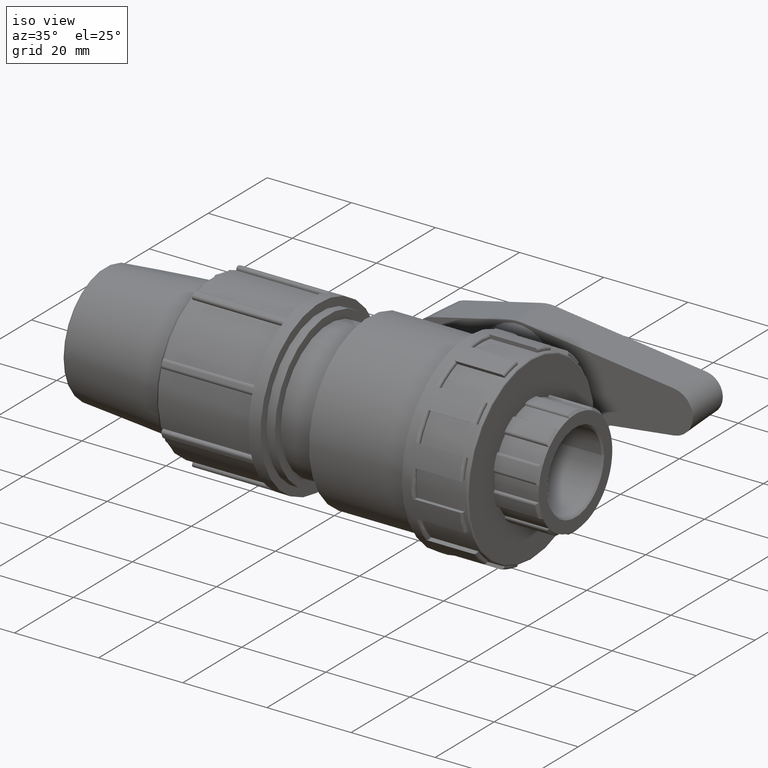
[diagram: clean part render]
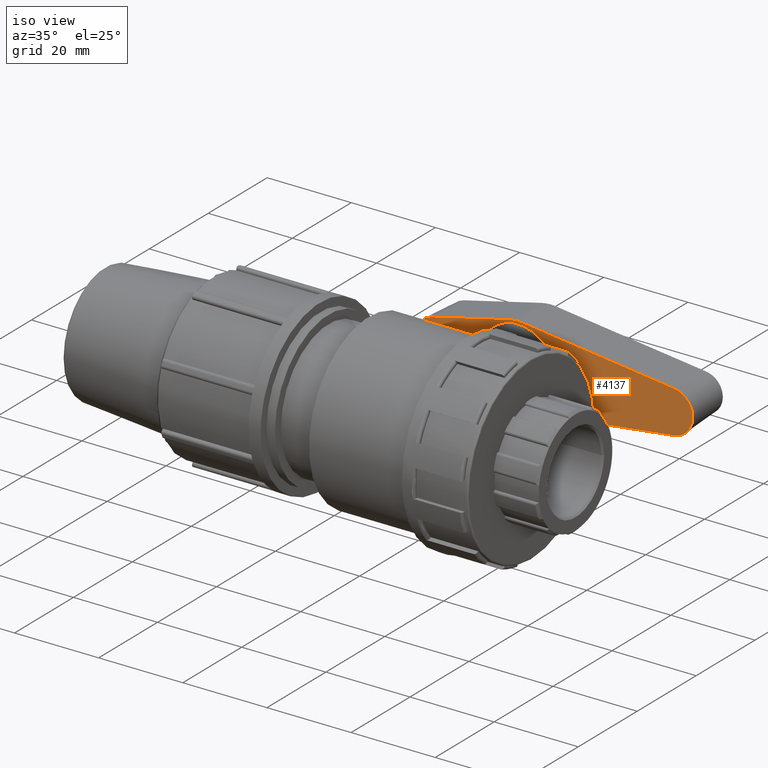
[diagram: same view with one face highlighted and labeled with its STEP entity id]
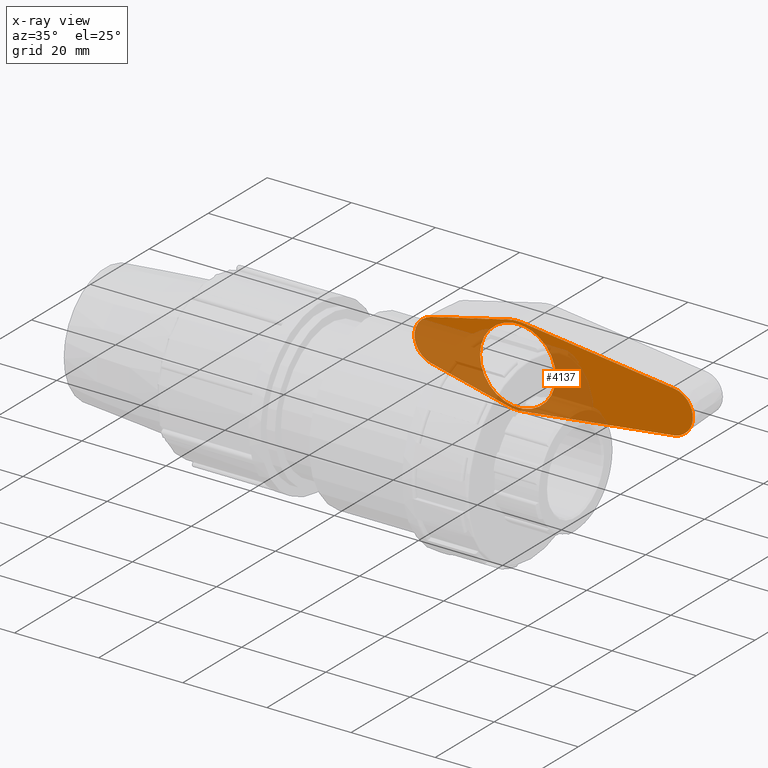
[diagram: x-ray of the same camera — body ghosted, the highlighted face saturated]
A machine part, iso view. The second image highlights one B-rep face of the part: STEP entity #4137.
The next image is the same camera in x-ray: the body ghosted, the highlighted face saturated — about 47% of this face is hidden behind the body in this view.
In plain terms, the highlighted planar face has unit normal (0, -1, -0).
Its self-contained STEP definition (entity closure, byte-faithful):
#83=FACE_BOUND('',#743,.T.);
#148=PLANE('',#4539);
#485=FACE_OUTER_BOUND('',#742,.T.);
#742=EDGE_LOOP('',(#3346,#3347,#3348,#3349,#3350,#3351,#3352,#3353));
#743=EDGE_LOOP('',(#3354));
#999=LINE('',#7653,#1243);
#1002=LINE('',#7661,#1246);
#1011=LINE('',#7692,#1255);
#1012=LINE('',#7695,#1256);
#1243=VECTOR('',#5439,36.2215405525497);
#1246=VECTOR('',#5448,36.2215405525497);
#1255=VECTOR('',#5481,18.9736659610103);
#1256=VECTOR('',#5484,18.9736659610103);
#1520=CIRCLE('',#4524,9.58958751693423);
#1521=CIRCLE('',#4527,5.08958751693422);
#1526=CIRCLE('',#4540,9.58958751693423);
#1527=CIRCLE('',#4541,5.08958751693422);
#1528=CIRCLE('',#4542,9.00000000000001);
#1854=VERTEX_POINT('',#7645);
#1855=VERTEX_POINT('',#7647);
#1856=VERTEX_POINT('',#7651);
#1857=VERTEX_POINT('',#7655);
#1858=VERTEX_POINT('',#7659);
#1867=VERTEX_POINT('',#7689);
#1868=VERTEX_POINT('',#7691);
#1869=VERTEX_POINT('',#7693);
#1870=VERTEX_POINT('',#7696);
#2394=EDGE_CURVE('',#1854,#1855,#1520,.T.);
#2397=EDGE_CURVE('',#1856,#1854,#999,.T.);
#2399=EDGE_CURVE('',#1857,#1856,#1521,.T.);
#2401=EDGE_CURVE('',#1858,#1857,#1002,.T.);
#2414=EDGE_CURVE('',#1867,#1858,#1526,.T.);
#2415=EDGE_CURVE('',#1868,#1867,#1011,.T.);
#2416=EDGE_CURVE('',#1869,#1868,#1527,.T.);
#2417=EDGE_CURVE('',#1855,#1869,#1012,.T.);
#2418=EDGE_CURVE('',#1870,#1870,#1528,.T.);
#3346=ORIENTED_EDGE('',*,*,#2397,.F.);
#3347=ORIENTED_EDGE('',*,*,#2399,.F.);
#3348=ORIENTED_EDGE('',*,*,#2401,.F.);
#3349=ORIENTED_EDGE('',*,*,#2414,.F.);
#3350=ORIENTED_EDGE('',*,*,#2415,.F.);
#3351=ORIENTED_EDGE('',*,*,#2416,.F.);
#3352=ORIENTED_EDGE('',*,*,#2417,.F.);
#3353=ORIENTED_EDGE('',*,*,#2394,.F.);
#3354=ORIENTED_EDGE('',*,*,#2418,.F.);
#4137=ADVANCED_FACE('',(#485,#83),#148,.T.);
#4524=AXIS2_PLACEMENT_3D('',#7648,#5433,#5434);
#4527=AXIS2_PLACEMENT_3D('',#7657,#5443,#5444);
#4539=AXIS2_PLACEMENT_3D('',#7688,#5477,#5478);
#4540=AXIS2_PLACEMENT_3D('',#7690,#5479,#5480);
#4541=AXIS2_PLACEMENT_3D('',#7694,#5482,#5483);
#4542=AXIS2_PLACEMENT_3D('',#7697,#5485,#5486);
#5433=DIRECTION('center_axis',(-3.06161699786839E-16,1.,0.));
#5434=DIRECTION('ref_axis',(1.,3.06161699786839E-16,0.));
#5439=DIRECTION('',(-0.992370974042457,-3.03825984231959E-16,-0.123287671232877));
#5443=DIRECTION('center_axis',(-3.06161699786839E-16,1.,0.));
#5444=DIRECTION('ref_axis',(1.,3.06161699786839E-16,0.));
#5448=DIRECTION('',(0.992370974042457,3.03825984231959E-16,-0.123287671232877));
#5477=DIRECTION('center_axis',(3.33756249813953E-16,-1.,-2.07066018474113E-32));
#5478=DIRECTION('ref_axis',(0.,0.,-1.));
#5479=DIRECTION('center_axis',(-3.06161699786839E-16,1.,0.));
#5480=DIRECTION('ref_axis',(1.,3.06161699786839E-16,0.));
#5481=DIRECTION('',(0.97300851082104,2.9789793958003E-16,0.230769230769231));
#5482=DIRECTION('center_axis',(-3.06161699786839E-16,1.,0.));
#5483=DIRECTION('ref_axis',(1.,3.06161699786839E-16,0.));
#5484=DIRECTION('',(-0.97300851082104,-2.9789793958003E-16,0.230769230769231));
#5485=DIRECTION('center_axis',(3.33756249813953E-16,-1.,-2.07066018474113E-32));
#5486=DIRECTION('ref_axis',(-1.,0.,0.));
#7645=CARTESIAN_POINT('',(1.18227791304668,33.75,-9.5164283048454));
#7647=CARTESIAN_POINT('',(-2.21298173467713,33.75,-9.33075026924021));
#7648=CARTESIAN_POINT('Origin',(-2.86910534680801E-15,33.75,0.));
#7651=CARTESIAN_POINT('',(37.1274833924987,33.75,-5.05075892165434));
#7653=CARTESIAN_POINT('',(37.1274833924987,33.75,-5.05075892165434));
#7655=CARTESIAN_POINT('',(37.1274833924987,33.75,5.05075892165434));
#7657=CARTESIAN_POINT('Origin',(36.5,33.75,0.));
#7659=CARTESIAN_POINT('',(1.18227791304669,33.75,9.5164283048454));
#7661=CARTESIAN_POINT('',(1.18227791304669,33.75,9.5164283048454));
#7688=CARTESIAN_POINT('Origin',(36.5000074954151,33.75,-1.54617918273625E-16));
#7689=CARTESIAN_POINT('',(-2.21298173467713,33.75,9.3307502692402));
#7690=CARTESIAN_POINT('Origin',(-2.86910534680801E-15,33.75,0.));
#7691=CARTESIAN_POINT('',(-20.6745201962156,33.75,4.95221197054551));
#7692=CARTESIAN_POINT('',(-20.6745201962156,33.75,4.95221197054551));
#7693=CARTESIAN_POINT('',(-20.6745201962156,33.75,-4.95221197054552));
#7694=CARTESIAN_POINT('Origin',(-19.5,33.75,0.));
#7695=CARTESIAN_POINT('',(-2.21298173467713,33.75,-9.33075026924021));
#7696=CARTESIAN_POINT('',(9.00000000000001,33.75,1.10218211923262E-15));
#7697=CARTESIAN_POINT('Origin',(-2.75545529808154E-15,33.75,0.));